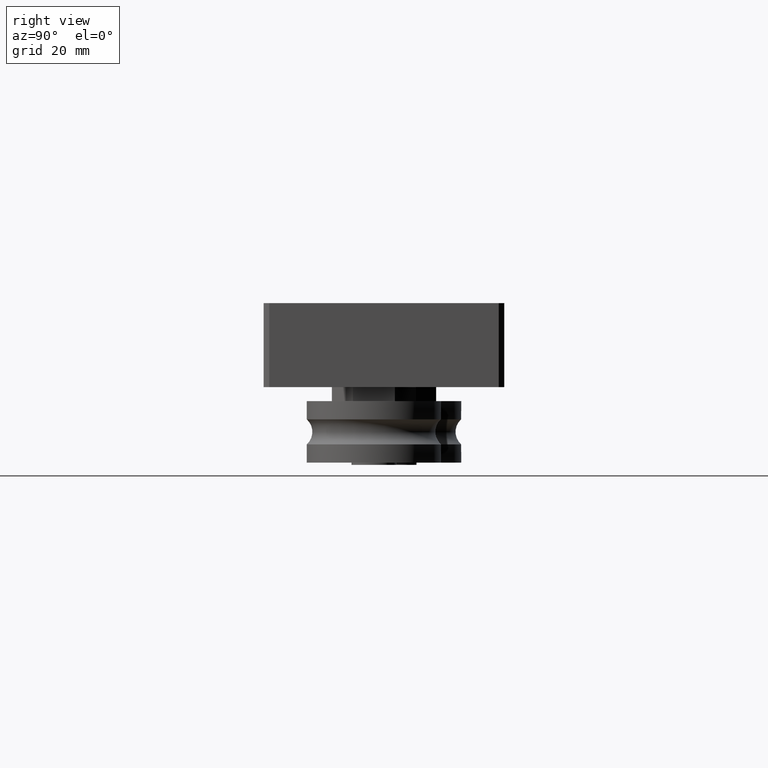
[diagram: clean part render]
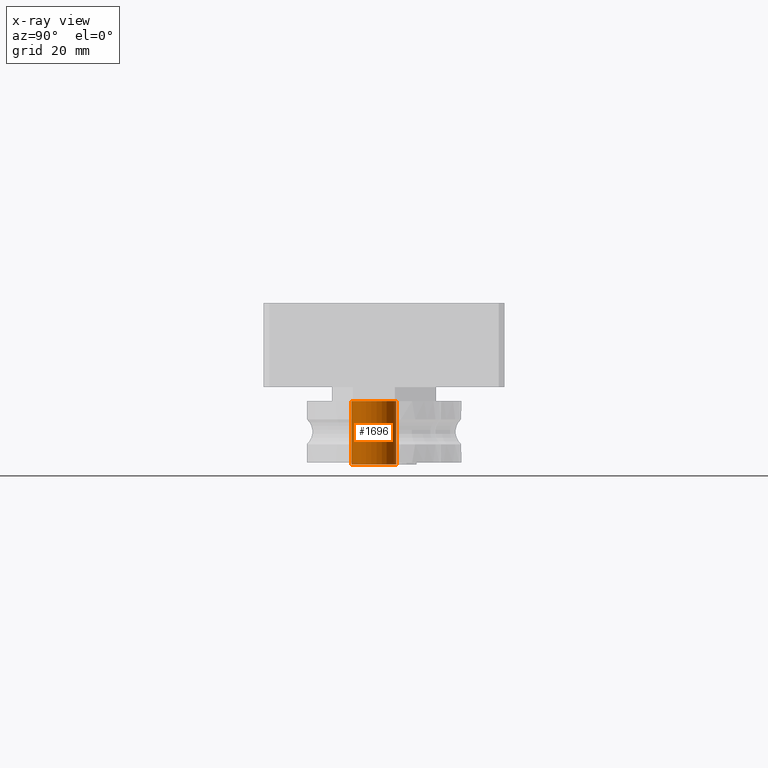
[diagram: x-ray — body ghosted, one internal face saturated and labeled with its STEP entity id]
A machine part, right view, then the same camera in x-ray: the body is ghosted and one INTERNAL B-rep face — a face not visible from any outside direction — is saturated and labeled: STEP entity #1696.
In plain terms, the highlighted cylindrical surface (bore or boss wall) has radius 4 mm, axis along (0, 0, -1).
Its self-contained STEP definition (entity closure, byte-faithful):
#146=CYLINDRICAL_SURFACE('',#2093,4.);
#270=CIRCLE('',#2094,4.);
#271=CIRCLE('',#2095,4.);
#372=FACE_OUTER_BOUND('',#512,.T.);
#512=EDGE_LOOP('',(#1482,#1483,#1484,#1485));
#645=LINE('',#3115,#761);
#761=VECTOR('',#2583,4.);
#898=VERTEX_POINT('',#3112);
#899=VERTEX_POINT('',#3114);
#1099=EDGE_CURVE('',#898,#898,#270,.T.);
#1100=EDGE_CURVE('',#898,#899,#645,.T.);
#1101=EDGE_CURVE('',#899,#899,#271,.T.);
#1482=ORIENTED_EDGE('',*,*,#1099,.T.);
#1483=ORIENTED_EDGE('',*,*,#1100,.T.);
#1484=ORIENTED_EDGE('',*,*,#1101,.F.);
#1485=ORIENTED_EDGE('',*,*,#1100,.F.);
#1696=ADVANCED_FACE('',(#372),#146,.T.);
#2093=AXIS2_PLACEMENT_3D('',#3111,#2579,#2580);
#2094=AXIS2_PLACEMENT_3D('',#3113,#2581,#2582);
#2095=AXIS2_PLACEMENT_3D('',#3116,#2584,#2585);
#2579=DIRECTION('center_axis',(0.,-9.73879846162418E-17,1.));
#2580=DIRECTION('ref_axis',(0.,1.,9.73879846162418E-17));
#2581=DIRECTION('center_axis',(0.,-9.73879846162418E-17,1.));
#2582=DIRECTION('ref_axis',(1.,0.,0.));
#2583=DIRECTION('',(0.,-9.73879846162418E-17,1.));
#2584=DIRECTION('center_axis',(0.,0.,1.));
#2585=DIRECTION('ref_axis',(0.,1.,9.73879846162418E-17));
#3111=CARTESIAN_POINT('Origin',(0.,-5.55111512312578E-16,4.15));
#3112=CARTESIAN_POINT('',(4.89858719658941E-16,-4.,-1.55));
#3113=CARTESIAN_POINT('Origin',(0.,0.,-1.55));
#3114=CARTESIAN_POINT('',(4.89858719658941E-16,-4.,9.85));
#3115=CARTESIAN_POINT('',(4.89858719658941E-16,-4.,4.15));
#3116=CARTESIAN_POINT('Origin',(0.,-1.11022302462516E-15,9.85));